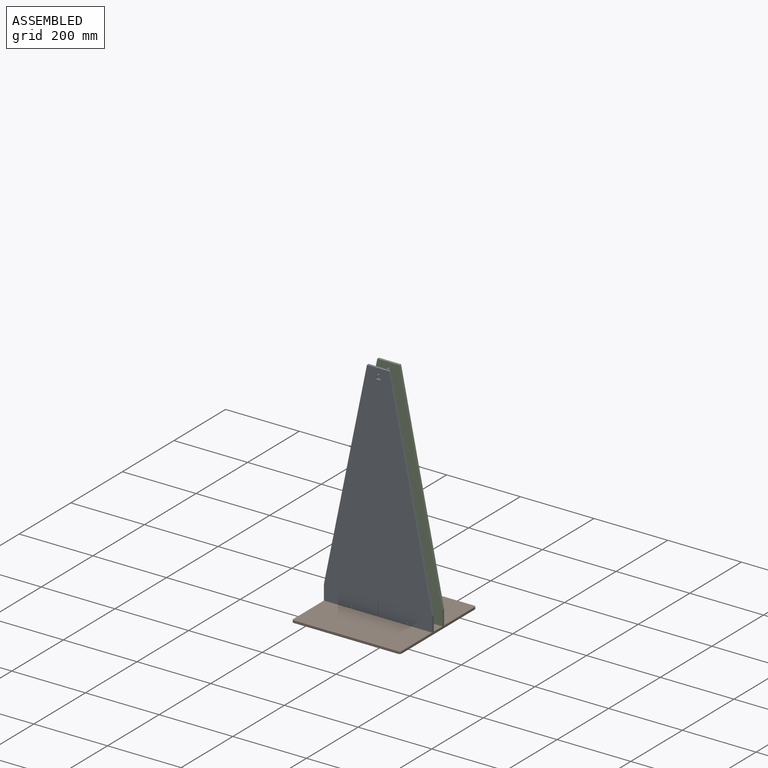
[diagram: assembled view]
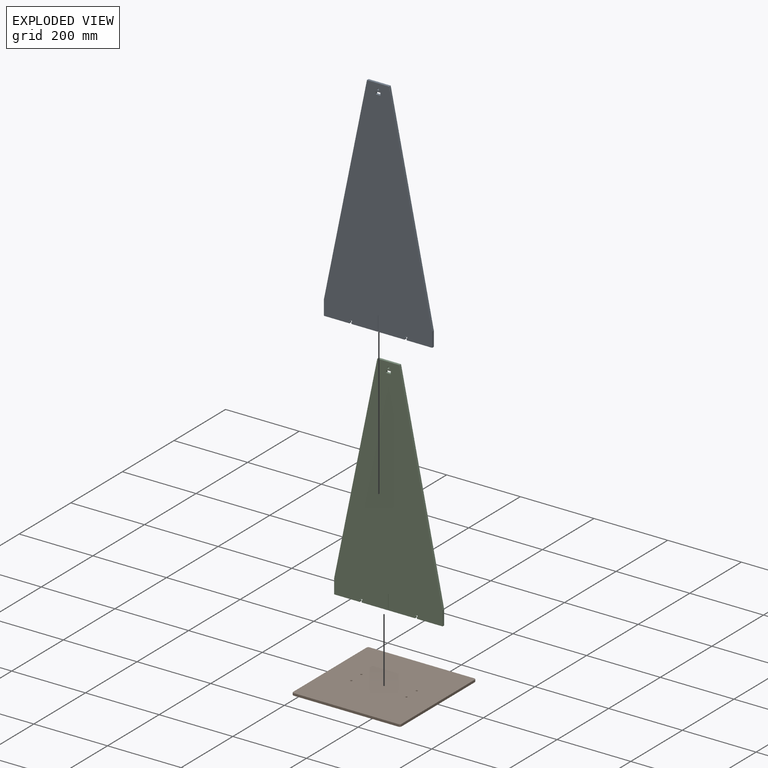
[diagram: exploded view]
GUIDED TOUR — MATED ASSEMBLY (Onshape document c2cf59318125be89bb831734, AutoMate assembly c2cf59318125be89bb831734_ba2477547bf9b0bb75bc58aa_0df74d0540caa7f5ec511fdb_default)

This assembly has 3 components, labeled P0..P2 below (a component is one placed occurrence of a part; the same part can appear more than once), held together by 2 mates. A mate is a constraint between two components; its type names the relative motion it leaves free:
  FASTENED — locks the two components together rigidly (no relative motion).
Axis/direction vectors are unit vectors and 'through' points are millimeter coordinates, both in the assembly's world frame.

MATES
  1. FASTENED "Fastened 2": P2 <-> P1, direction (0.000, 0.000, -1.000) through (-131.12, 400.64, 179.16) mm
  2. FASTENED "Fastened 1": P1 <-> P0, direction (0.000, 0.000, 1.000) through (-131.12, 360.64, 171.16) mm

ASSEMBLY ORDER
  1. P2 — the base component [order verified]
  2. P0 [order verified]
  3. P1 [order verified]
Order-tag legend:
  [order verified] — this step's position reverses a verified removal order: the component was checked to insert without passing through the ones already placed.

Of the 3 components, 3 carry the full construction recipe — the FeatureScript program that regenerates the part's solid from scratch; the rest are supplied as boundary geometry only.
Each toured component is shown spotlighted twice — in the assembled view, then in the exploded view, where a leader line traces a displaced component back to its assembled socket (saturated green if recipe-attached, orange if geometry-only; every other component desaturated gray) — followed by its recipe or geometry summary and the mates that hold it.
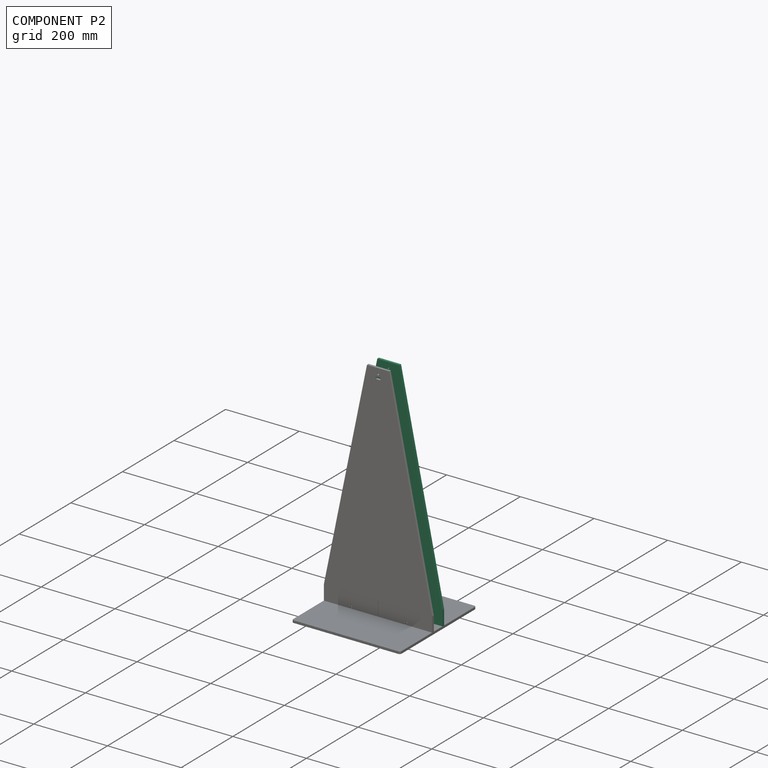
[diagram: component P2 — assembled]
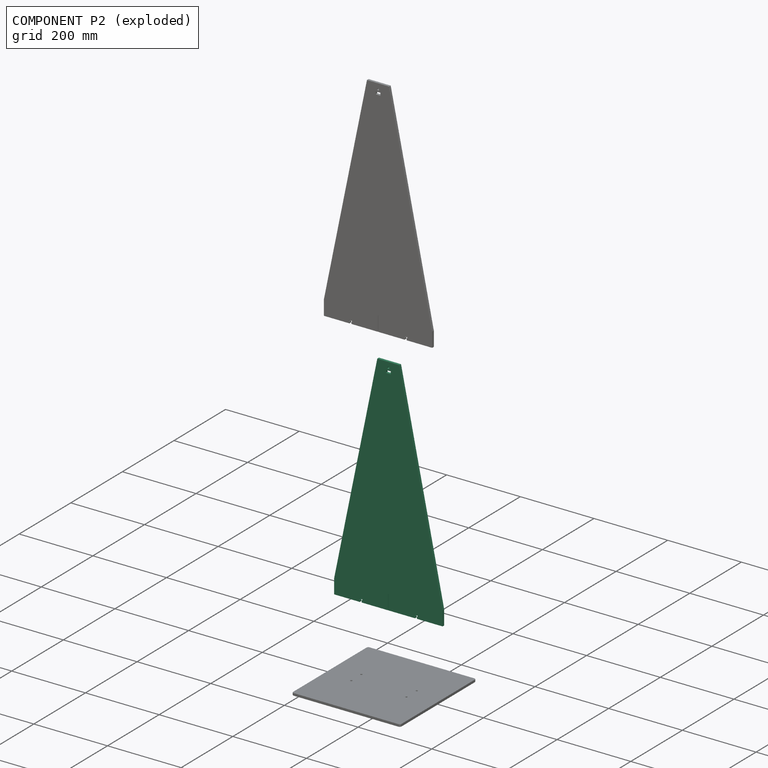
[diagram: component P2 — exploded]
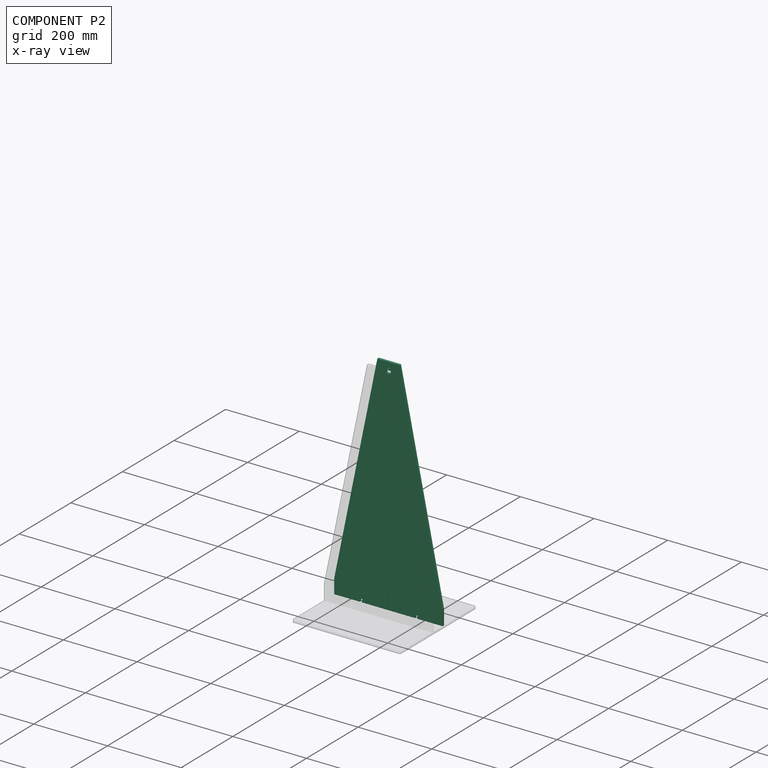
[diagram: component P2 — x-ray view]
COMPONENT P2 — same part as P0 (CADFS 00801753); its construction recipe is shown at P0.
Held by: FASTENED mate "Fastened 2" to P1.
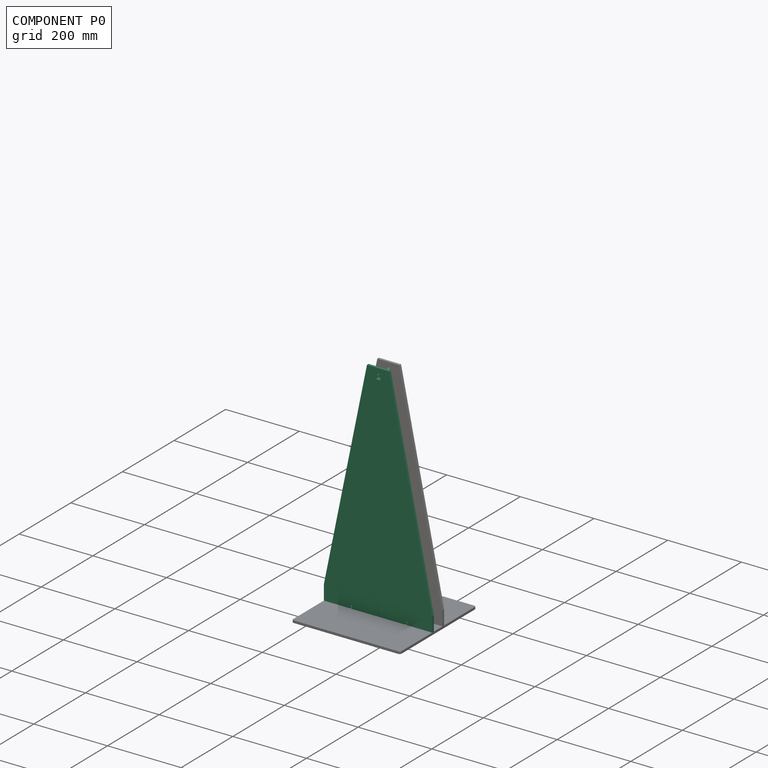
[diagram: component P0 — assembled]
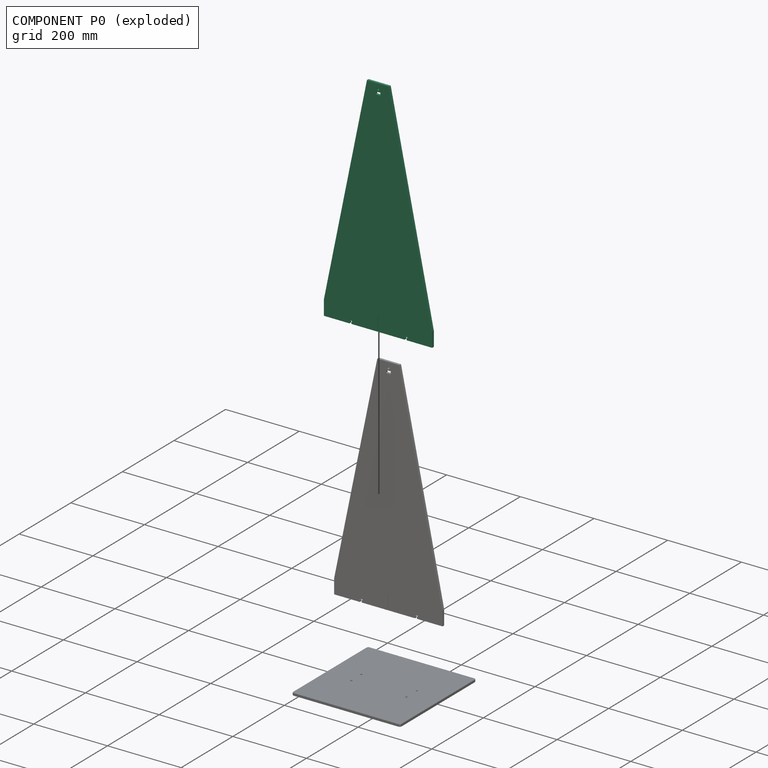
[diagram: component P0 — exploded]
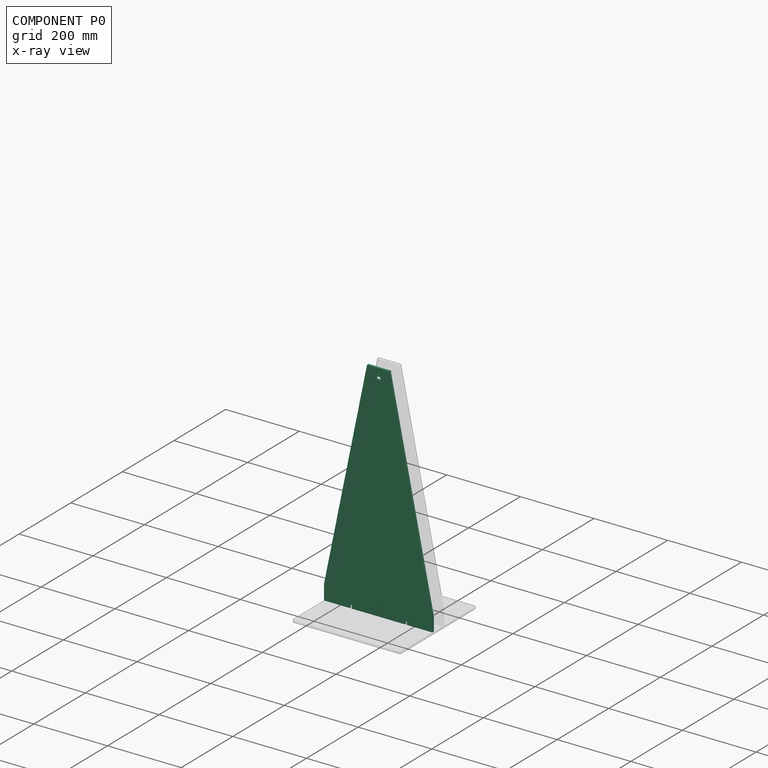
[diagram: component P0 — x-ray view]
COMPONENT P0 — recipe-attached (CADFS 00801753, mesh-verified: the recipe's output STEP matches this component's geometry to below the mesh-comparison resolution (tessellation chordal tolerance ~1.02 mm)).
Held by: FASTENED mate "Fastened 1" to P1.
Construction recipe (FeatureScript — the CAD program that rebuilds this solid; sketch coordinates are in the units given by the * unit suffixes, e.g. mm):

FeatureScript 1511;
import(path : "onshape/std/geometry.fs", version : "1511.0");
import(path : "onshape/std/common.fs", version : "1511.0");
const mm = millimeter;
const VERTEX = EntityType.VERTEX;
const EDGE = EntityType.EDGE;
const FACE = EntityType.FACE;
const BODY = EntityType.BODY;
function v(x, y){return vector(x, y);}
function OD(order){return orderDisambiguation(order);}
function OSD(set){return originalSetDisambiguation(set);}
function TD(topology){return topologyDisambiguation(topology);}
function TDD(query){return trueDependencyDisambiguation(query);}
function sQuery(a, b, c) {return sketchEntityQuery(a, b, c);}

annotation { "Feature Type Name" : "Feature", "Feature Type Description" : "" }
export const myFeature = defineFeature(function(context is Context, id is Id, definition is map)
    precondition{}
    {
        {
            var Q0;
            Q0=qCreatedBy(makeId("Top.planeOp"),FACE);
            var sketch = newSketch(context, id + "F0", { "sketchPlane" : qUnion([Q0])});
            skLineSegment(sketch, "E0.bottom", {"start": v(152.4, 304.8) * mm, "end": v(-152.4, 304.8) * mm, "construction": true});
            skLineSegment(sketch, "E0.top", {"start": v(152.4, -304.8) * mm, "end": v(-152.4, -304.8) * mm, "construction": true});
            skLineSegment(sketch, "E0.left", {"start": v(152.4, 304.8) * mm, "end": v(152.4, -304.8) * mm, "construction": true});
            skLineSegment(sketch, "E0.right", {"start": v(-152.4, 304.8) * mm, "end": v(-152.4, -304.8) * mm, "construction": true});
            skPoint(sketch, "E0.middle", {"position": v(0, 0) * mm});
            skLineSegment(sketch, "E1", {"start": v(-152.4, -264.8) * mm, "end": v(152.4, -264.8) * mm});
            skLineSegment(sketch, "E2", {"start": v(-147.4, -264.8) * mm, "end": v(-147.4, -304.8) * mm});
            skLineSegment(sketch, "E3", {"start": v(146.6, -264.8) * mm, "end": v(146.6, -304.8) * mm});
            skLineSegment(sketch, "E4", {"start": v(-147.4, -304.8) * mm, "end": v(146.6, -304.8) * mm});
            skLineSegment(sketch, "E5", {"start": v(-0.4, -304.8) * mm, "end": v(-0.4, 304.8) * mm, "construction": true});
            skLineSegment(sketch, "E6", {"start": v(-147.4, -264.8) * mm, "end": v(-30.4, 304.8) * mm});
            skLineSegment(sketch, "E7", {"start": v(-30.4, 304.8) * mm, "end": v(29.6, 304.8) * mm});
            skLineSegment(sketch, "E8", {"start": v(29.6, 304.8) * mm, "end": v(146.6, -264.8) * mm});
            skCircle(sketch, "E9", {"center": v(-0.4, 289.8) * mm, "radius": 2.55 * mm});
            skLineSegment(sketch, "E10.bottom", {"start": v(6.1, 276.3) * mm, "end": v(-6.9, 276.3) * mm});
            skLineSegment(sketch, "E10.top", {"start": v(6.1, 283.3) * mm, "end": v(-6.9, 283.3) * mm});
            skLineSegment(sketch, "E10.left", {"start": v(6.1, 276.3) * mm, "end": v(6.1, 283.3) * mm});
            skLineSegment(sketch, "E10.right", {"start": v(-6.9, 276.3) * mm, "end": v(-6.9, 283.3) * mm});
            skPoint(sketch, "E10.middle", {"position": v(-0.4, 279.8) * mm});
            skLineSegment(sketch, "E11.bottom", {"start": v(-0.9, -264.8) * mm, "end": v(0.1, -264.8) * mm});
            skLineSegment(sketch, "E11.top", {"start": v(-0.9, -304.8) * mm, "end": v(0.1, -304.8) * mm});
            skLineSegment(sketch, "E11.left", {"start": v(-0.9, -264.8) * mm, "end": v(-0.9, -304.8) * mm});
            skLineSegment(sketch, "E11.right", {"start": v(0.1, -264.8) * mm, "end": v(0.1, -304.8) * mm});
            skLineSegment(sketch, "E12.bottom", {"start": v(-77.95, -304.8) * mm, "end": v(-72.85, -304.8) * mm});
            skLineSegment(sketch, "E12.top", {"start": v(-77.95, -299.8) * mm, "end": v(-72.85, -299.8) * mm});
            skLineSegment(sketch, "E12.left", {"start": v(-77.95, -304.8) * mm, "end": v(-77.95, -299.8) * mm});
            skLineSegment(sketch, "E12.right", {"start": v(-72.85, -304.8) * mm, "end": v(-72.85, -299.8) * mm});
            skLineSegment(sketch, "E13.bottom", {"start": v(-71.35, -299.8) * mm, "end": v(-79.45, -299.8) * mm});
            skLineSegment(sketch, "E13.top", {"start": v(-71.35, -296.8) * mm, "end": v(-79.45, -296.8) * mm});
            skLineSegment(sketch, "E13.left", {"start": v(-71.35, -299.8) * mm, "end": v(-71.35, -296.8) * mm});
            skLineSegment(sketch, "E13.right", {"start": v(-79.45, -299.8) * mm, "end": v(-79.45, -296.8) * mm});
            skLineSegment(sketch, "E14", {"start": v(-75.4, -299.8) * mm, "end": v(-75.4, -304.8) * mm, "construction": true});
            skLineSegment(sketch, "E15.MirrorCS", {"start": v(-79.45, -299.8) * mm, "end": v(-71.35, -299.8) * mm});
            skLineSegment(sketch, "E16.MirrorCS", {"start": v(-72.85, -304.8) * mm, "end": v(-77.95, -304.8) * mm});
            skLineSegment(sketch, "E17.MirrorCS", {"start": v(-72.85, -299.8) * mm, "end": v(-77.95, -299.8) * mm});
            skLineSegment(sketch, "E18.MirrorCS", {"start": v(-79.45, -296.8) * mm, "end": v(-71.35, -296.8) * mm});
            skLineSegment(sketch, "E19.MirrorCS", {"start": v(-150.4, -304.8) * mm, "end": v(-150.4, 304.8) * mm, "construction": true});
            skLineSegment(sketch, "E20.MirrorCS", {"start": v(77.15, -304.8) * mm, "end": v(77.15, -299.8) * mm});
            skLineSegment(sketch, "E21.MirrorCS", {"start": v(78.65, -299.8) * mm, "end": v(78.65, -296.8) * mm});
            skLineSegment(sketch, "E22.MirrorCS", {"start": v(70.55, -296.8) * mm, "end": v(78.65, -296.8) * mm});
            skLineSegment(sketch, "E23.MirrorCS", {"start": v(70.55, -299.8) * mm, "end": v(70.55, -296.8) * mm});
            skLineSegment(sketch, "E24.MirrorCS", {"start": v(72.05, -304.8) * mm, "end": v(72.05, -299.8) * mm});
            skLineSegment(sketch, "E25.MirrorCS", {"start": v(70.55, -299.8) * mm, "end": v(78.65, -299.8) * mm});
            skSolve(sketch);
        }
        {
            var Q0;
            {var subQ1=sQuery(id+"F0.wireOp",EDGE,"E6");Q0=makeQuery(id+"F0.imprint","IMPRINT",FACE,{"disambiguationData":[TD([[makeQuery(id+"F0.imprint","IMPRINT",EDGE,{"derivedFrom":subQ1}),-1.0]])]});}
            var Q1;
            {var subQ4=sQuery(id+"F0.wireOp",EDGE,"E2");Q1=makeQuery(id+"F0.imprint","IMPRINT",FACE,{"disambiguationData":[TD([[makeQuery(id+"F0.imprint","IMPRINT",EDGE,{"derivedFrom":subQ4}),1.0]])]});}
            var Q2;
            {var subQ3=sQuery(id+"F0.wireOp",EDGE,"E3");Q2=makeQuery(id+"F0.imprint","IMPRINT",FACE,{"disambiguationData":[TD([[makeQuery(id+"F0.imprint","IMPRINT",EDGE,{"derivedFrom":subQ3}),-1.0]])]});}
            extrude(context, id + "F1", {"entities" : qUnion([Q0, Q1, Q2]), "depth" : 6.35 * mm, "offsetDistance" : 25 * mm});
        }
    });
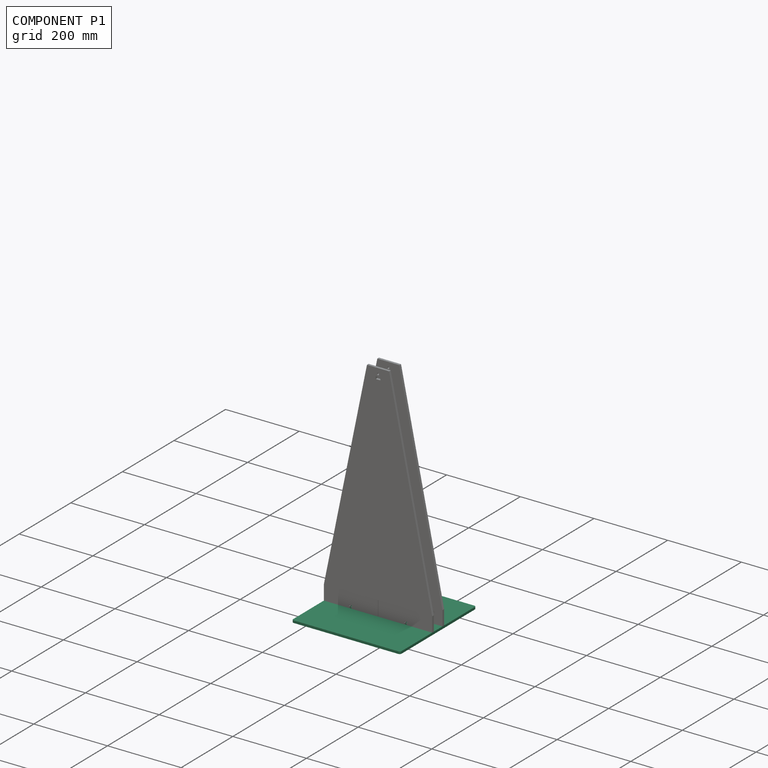
[diagram: component P1 — assembled]
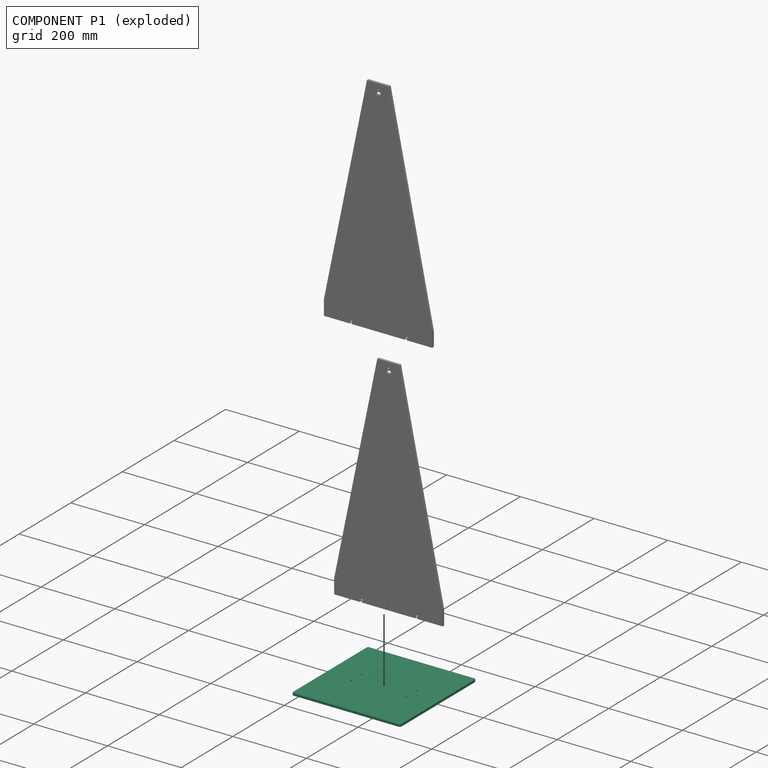
[diagram: component P1 — exploded]
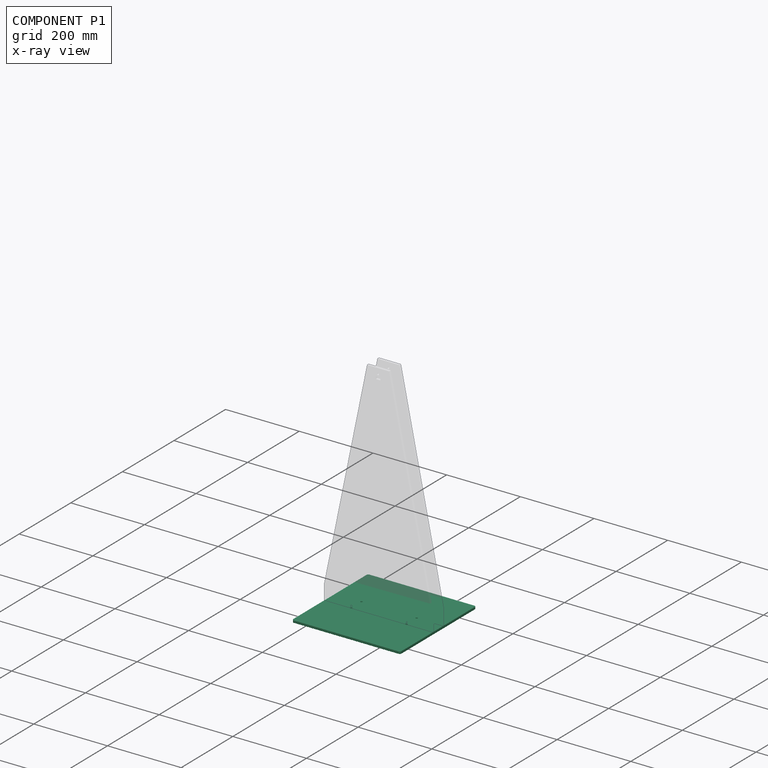
[diagram: component P1 — x-ray view]
COMPONENT P1 — recipe-attached (CADFS 00801754, mesh-verified: the recipe's output STEP matches this component's geometry to below the mesh-comparison resolution (tessellation chordal tolerance ~0.624 mm)).
Held by: FASTENED mate "Fastened 2" to P2; FASTENED mate "Fastened 1" to P0.
Construction recipe (FeatureScript — the CAD program that rebuilds this solid; sketch coordinates are in the units given by the * unit suffixes, e.g. mm):

FeatureScript 1511;
import(path : "onshape/std/geometry.fs", version : "1511.0");
import(path : "onshape/std/common.fs", version : "1511.0");
const mm = millimeter;
const VERTEX = EntityType.VERTEX;
const EDGE = EntityType.EDGE;
const FACE = EntityType.FACE;
const BODY = EntityType.BODY;
function v(x, y){return vector(x, y);}
function OD(order){return orderDisambiguation(order);}
function OSD(set){return originalSetDisambiguation(set);}
function TD(topology){return topologyDisambiguation(topology);}
function TDD(query){return trueDependencyDisambiguation(query);}
function sQuery(a, b, c) {return sketchEntityQuery(a, b, c);}

annotation { "Feature Type Name" : "Feature", "Feature Type Description" : "" }
export const myFeature = defineFeature(function(context is Context, id is Id, definition is map)
    precondition{}
    {
        {
            var Q0;
            Q0=qCreatedBy(makeId("Top.planeOp"),FACE);
            var sketch = newSketch(context, id + "F0", { "sketchPlane" : qUnion([Q0])});
            skLineSegment(sketch, "E0.bottom", {"start": v(142, 147) * mm, "end": v(-142, 147) * mm});
            skLineSegment(sketch, "E0.top", {"start": v(142, -147) * mm, "end": v(-142, -147) * mm});
            skLineSegment(sketch, "E0.left", {"start": v(147, 142) * mm, "end": v(147, -142) * mm});
            skLineSegment(sketch, "E0.right", {"start": v(-147, 142) * mm, "end": v(-147, -142) * mm});
            skPoint(sketch, "E0.middle", {"position": v(0, 0) * mm});
            skLineSegment(sketch, "E1.bottom", {"start": v(75, 20) * mm, "end": v(-75, 20) * mm, "construction": true});
            skLineSegment(sketch, "E1.top", {"start": v(75, -20) * mm, "end": v(-75, -20) * mm, "construction": true});
            skLineSegment(sketch, "E1.left", {"start": v(75, 20) * mm, "end": v(75, -20) * mm, "construction": true});
            skLineSegment(sketch, "E1.right", {"start": v(-75, 20) * mm, "end": v(-75, -20) * mm, "construction": true});
            skCircle(sketch, "E2", {"center": v(75, 20) * mm, "radius": 2.55 * mm});
            skCircle(sketch, "E3", {"center": v(75, -20) * mm, "radius": 2.55 * mm});
            skCircle(sketch, "E4", {"center": v(-75, -20) * mm, "radius": 2.55 * mm});
            skCircle(sketch, "E5", {"center": v(-75, 20) * mm, "radius": 2.55 * mm});
            skPoint(sketch, "E6.visualSharp", {"position": v(147, 147) * mm});
            skArc(sketch, "E6.filletArc", {"start": v(147, 142) * mm, "mid": v(145.54, 145.54) * mm, "end": v(142, 147) * mm});
            skPoint(sketch, "E7.visualSharp", {"position": v(147, -147) * mm});
            skArc(sketch, "E7.filletArc", {"start": v(142, -147) * mm, "mid": v(145.54, -145.54) * mm, "end": v(147, -142) * mm});
            skPoint(sketch, "E8.visualSharp", {"position": v(-147, -147) * mm});
            skArc(sketch, "E8.filletArc", {"start": v(-147, -142) * mm, "mid": v(-145.54, -145.54) * mm, "end": v(-142, -147) * mm});
            skPoint(sketch, "E9.visualSharp", {"position": v(-147, 147) * mm});
            skArc(sketch, "E9.filletArc", {"start": v(-142, 147) * mm, "mid": v(-145.54, 145.54) * mm, "end": v(-147, 142) * mm});
            skSolve(sketch);
        }
        {
            var Q0;
            Q0=makeQuery(id+"F0.imprint","IMPRINT",FACE,{"disambiguationData":[TD([[makeQuery(id+"F0.imprint","IMPRINT",EDGE,{"derivedFrom":sQuery(id+"F0.wireOp",EDGE,"E0.bottom")}),1.0]])]});
            extrude(context, id + "F1", {"entities" : qUnion([Q0]), "depth" : 6.35 * mm, "offsetDistance" : 25 * mm});
        }
    });
PROVENANCE & LICENSES
Assembly (occurrences, transforms, mates, per-part STEP geometry): AutoMate dataset, Zenodo record 7776208, CC0.
Construction recipes: CADFS (HuggingFace VladPyatov/CADFS, CC-BY-4.0, layered over the ABC dataset), FeatureScript reconstruction programs keyed by ABC model id.
Join: ABC meta listings map ABC model id -> Onshape documentId; within a shared document, parts are matched by geometric signature (bounding-box dims + volume at 0.1% relative tolerance, exact B-rep face/solid counts).
Verification: 3 of this assembly's 3 components carry a recipe attachment, and every attachment is mesh-verified: the CADFS STEP and the AutoMate member STEP were compared as meshes in their shared local frame (symmetric sampled-point-to-mesh distance); worst across the 3 attachments: below the mesh-comparison resolution (tessellation chordal tolerance ~1.02 mm) on a 677 mm part.
Renders: orthographic iso camera (az 35 / el 25); the floor grid conveys scale (grid pitch printed in each image; no ruler). In the exploded view each component is displaced by its stored offset vector: the offsets alone carry the explosion direction (mate normal/axis signs are not orientation cues and do not encode it), and separation distances are assigned per mate-chain, not proportionally to assembly-order depth.
